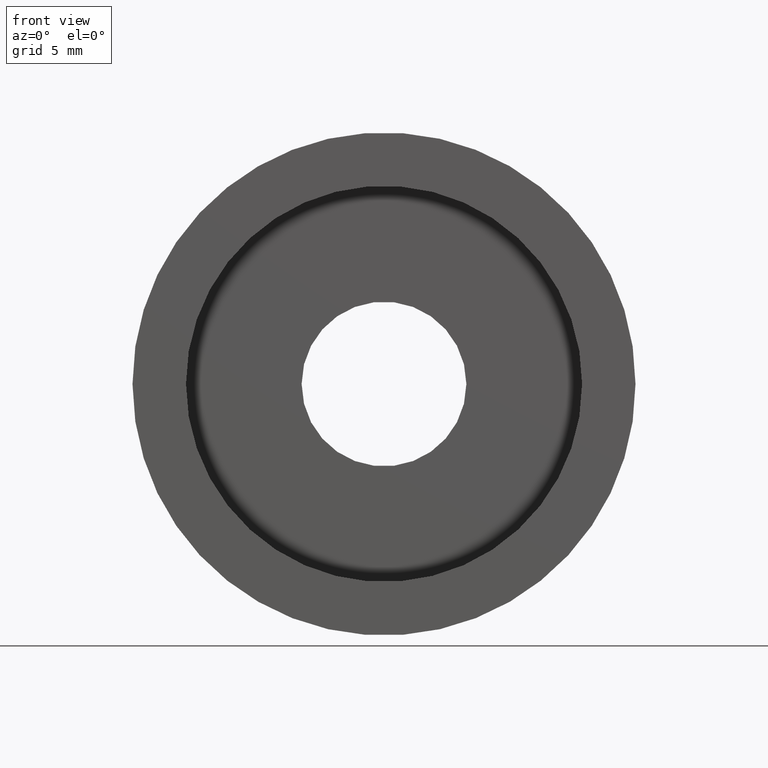
[diagram: clean part render]
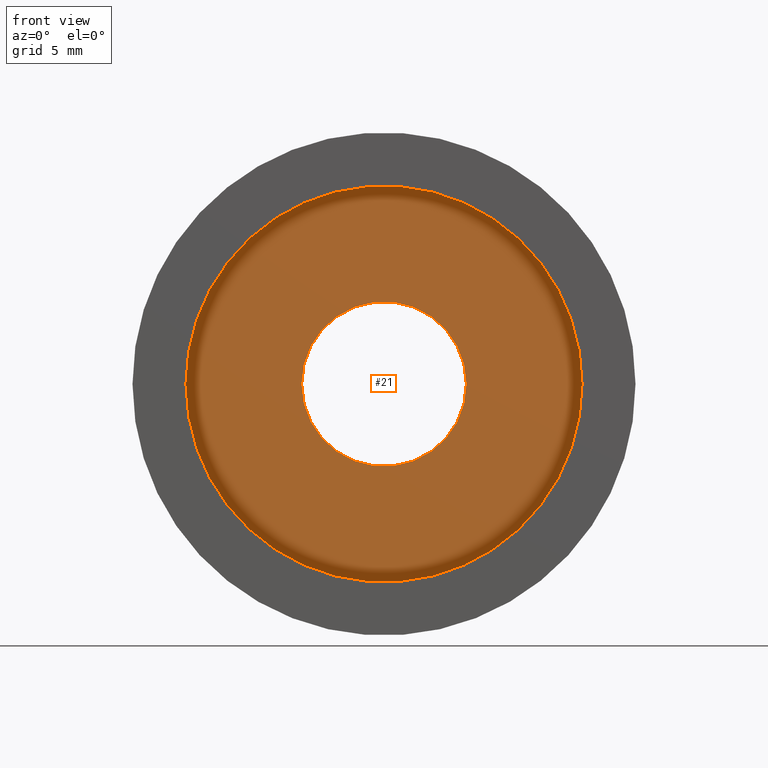
[diagram: same view with one face highlighted and labeled with its STEP entity id]
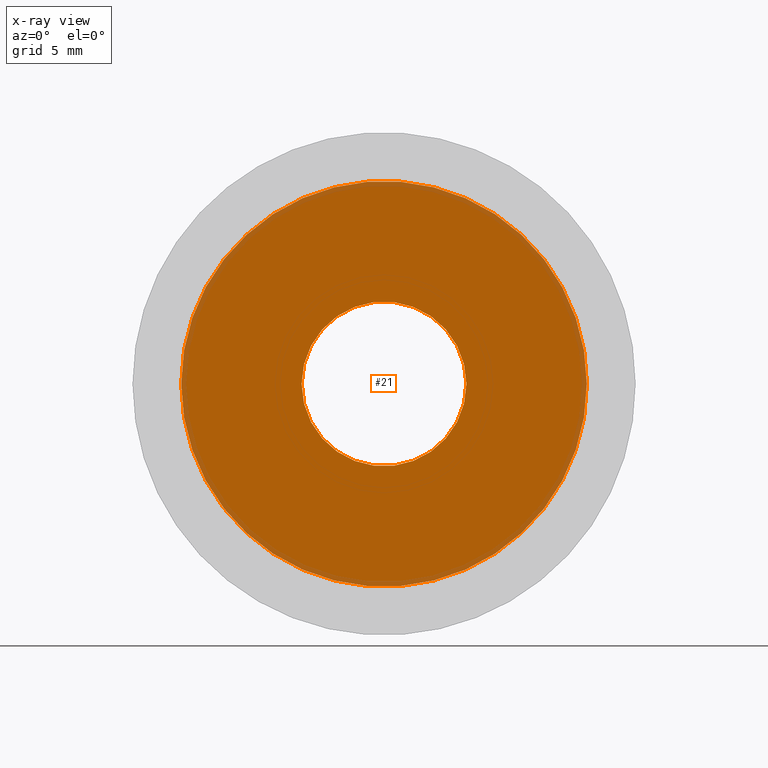
[diagram: x-ray of the same camera — body ghosted, the highlighted face saturated]
A machine part, front view. The second image highlights one B-rep face of the part: STEP entity #21.
The next image is the same camera in x-ray: the body ghosted, the highlighted face saturated — about 6% of this face is hidden behind the body in this view.
In plain terms, the highlighted planar face has unit normal (-0, 1, 0).
Its self-contained STEP definition (entity closure, byte-faithful):
#9 = PLANE ( 'NONE',  #183 ) ;
#18 = DIRECTION ( 'NONE',  ( -1.000000000000000000, -1.355252715606880500E-016, 0.0000000000000000000 ) ) ;
#21 = ADVANCED_FACE ( 'NONE', ( #609, #476 ), #9, .F. ) ;
#52 = CARTESIAN_POINT ( 'NONE',  ( 5.200000000000001100, 5.499999999999999100, 0.0000000000000000000 ) ) ;
#60 = ORIENTED_EDGE ( 'NONE', *, *, #340, .T. ) ;
#82 = DIRECTION ( 'NONE',  ( -1.224646799147351000E-016, 1.000000000000000000, -0.0000000000000000000 ) ) ;
#161 = ORIENTED_EDGE ( 'NONE', *, *, #298, .F. ) ;
#165 = CARTESIAN_POINT ( 'NONE',  ( 5.200000000000001100, 5.500000000000000900, 6.368163355566236400E-016 ) ) ;
#173 = DIRECTION ( 'NONE',  ( -1.224646799147351000E-016, 1.000000000000000000, -0.0000000000000000000 ) ) ;
#174 = VERTEX_POINT ( 'NONE', #165 ) ;
#183 = AXIS2_PLACEMENT_3D ( 'NONE', #52, #586, #204 ) ;
#189 = VERTEX_POINT ( 'NONE', #396 ) ;
#193 = CIRCLE ( 'NONE', #524, 12.80000000000000100 ) ;
#204 = DIRECTION ( 'NONE',  ( -1.000000000000000000, -1.224646799147351000E-016, 0.0000000000000000000 ) ) ;
#205 = DIRECTION ( 'NONE',  ( -1.224646799147351000E-016, 1.000000000000000000, -0.0000000000000000000 ) ) ;
#216 = CIRCLE ( 'NONE', #512, 5.200000000000000200 ) ;
#264 = CARTESIAN_POINT ( 'NONE',  ( 1.394385078907592800E-015, 5.500000000000000000, 0.0000000000000000000 ) ) ;
#270 = EDGE_CURVE ( 'NONE', #378, #189, #193, .T. ) ;
#272 = CARTESIAN_POINT ( 'NONE',  ( 1.394385078907592800E-015, 5.500000000000000000, 0.0000000000000000000 ) ) ;
#298 = EDGE_CURVE ( 'NONE', #189, #378, #475, .T. ) ;
#339 = VERTEX_POINT ( 'NONE', #555 ) ;
#340 = EDGE_CURVE ( 'NONE', #174, #339, #465, .T. ) ;
#346 = ORIENTED_EDGE ( 'NONE', *, *, #415, .T. ) ;
#353 = CARTESIAN_POINT ( 'NONE',  ( 1.394385078907593000E-015, 5.499999999999998200, 0.0000000000000000000 ) ) ;
#361 = AXIS2_PLACEMENT_3D ( 'NONE', #591, #542, #393 ) ;
#378 = VERTEX_POINT ( 'NONE', #507 ) ;
#379 = AXIS2_PLACEMENT_3D ( 'NONE', #264, #173, #458 ) ;
#393 = DIRECTION ( 'NONE',  ( -1.000000000000000000, -1.355252715606880500E-016, 0.0000000000000000000 ) ) ;
#396 = CARTESIAN_POINT ( 'NONE',  ( -12.79999999999999900, 5.499999999999996400, 0.0000000000000000000 ) ) ;
#409 = DIRECTION ( 'NONE',  ( -1.000000000000000000, -1.668003342285391300E-016, 0.0000000000000000000 ) ) ;
#415 = EDGE_CURVE ( 'NONE', #339, #174, #216, .T. ) ;
#458 = DIRECTION ( 'NONE',  ( -1.000000000000000000, -1.668003342285391300E-016, 0.0000000000000000000 ) ) ;
#465 = CIRCLE ( 'NONE', #379, 5.200000000000000200 ) ;
#475 = CIRCLE ( 'NONE', #361, 12.80000000000000100 ) ;
#476 = FACE_BOUND ( 'NONE', #585, .T. ) ;
#507 = CARTESIAN_POINT ( 'NONE',  ( 12.80000000000000200, 5.500000000000000000, 1.567547902908612200E-015 ) ) ;
#512 = AXIS2_PLACEMENT_3D ( 'NONE', #272, #82, #409 ) ;
#524 = AXIS2_PLACEMENT_3D ( 'NONE', #353, #205, #18 ) ;
#536 = EDGE_LOOP ( 'NONE', ( #161, #561 ) ) ;
#542 = DIRECTION ( 'NONE',  ( -1.224646799147351000E-016, 1.000000000000000000, -0.0000000000000000000 ) ) ;
#555 = CARTESIAN_POINT ( 'NONE',  ( -5.199999999999998400, 5.499999999999999100, 0.0000000000000000000 ) ) ;
#561 = ORIENTED_EDGE ( 'NONE', *, *, #270, .F. ) ;
#585 = EDGE_LOOP ( 'NONE', ( #346, #60 ) ) ;
#586 = DIRECTION ( 'NONE',  ( -1.224646799147351000E-016, 1.000000000000000000, 0.0000000000000000000 ) ) ;
#591 = CARTESIAN_POINT ( 'NONE',  ( 1.394385078907593000E-015, 5.499999999999998200, 0.0000000000000000000 ) ) ;
#609 = FACE_OUTER_BOUND ( 'NONE', #536, .T. ) ;